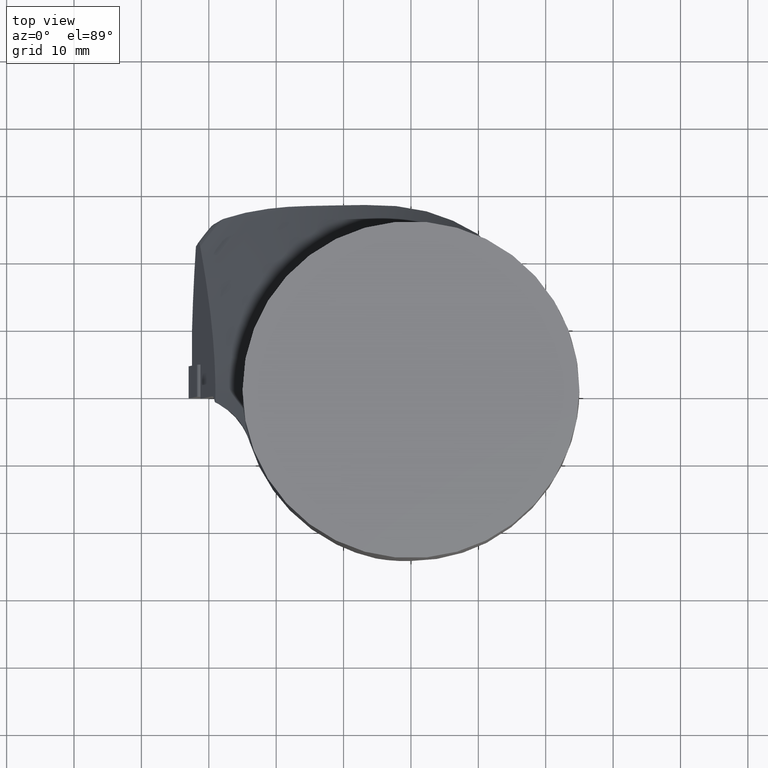
[diagram: clean part render]
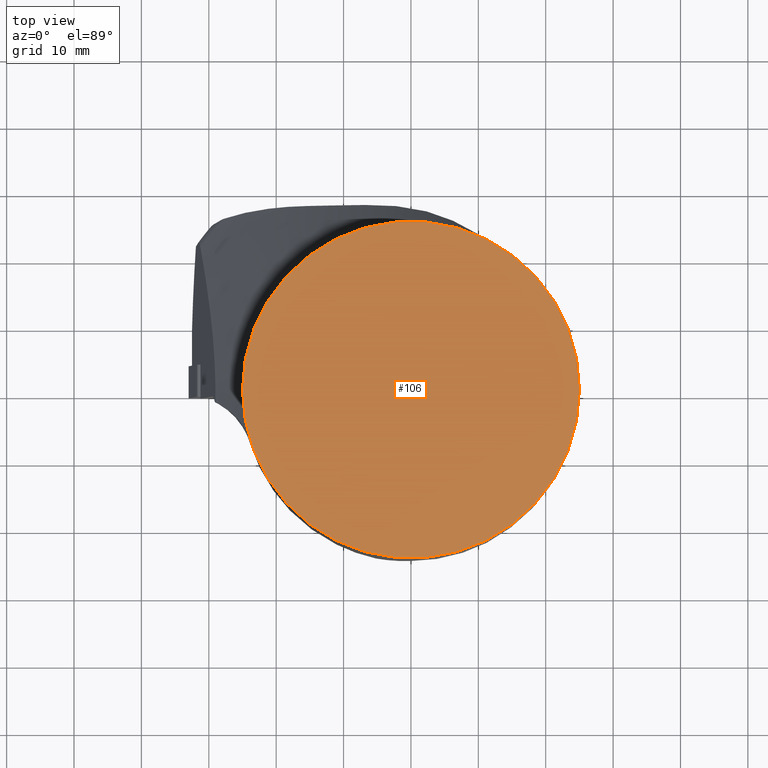
[diagram: same view with one face highlighted and labeled with its STEP entity id]
A machine part, top view. The second image highlights one B-rep face of the part: STEP entity #106.
In plain terms, the highlighted planar face has unit normal (-0, -0, -1).
Its self-contained STEP definition (entity closure, byte-faithful):
#106=ADVANCED_FACE('',(#170),#171,.F.);
#170=FACE_OUTER_BOUND('',#306,.T.);
#171=PLANE('',#307);
#306=EDGE_LOOP('',(#570,#571));
#307=AXIS2_PLACEMENT_3D('',#572,#573,#574);
#570=ORIENTED_EDGE('',*,*,#632,.T.);
#571=ORIENTED_EDGE('',*,*,#645,.T.);
#572=CARTESIAN_POINT('',(0.0,0.0,0.0));
#573=DIRECTION('',(-0.0,-0.0,-1.0));
#574=DIRECTION('',(-1.0,0.0,0.0));
#632=EDGE_CURVE('',#765,#763,#766,.T.);
#645=EDGE_CURVE('',#763,#765,#787,.T.);
#763=VERTEX_POINT('',#993);
#765=VERTEX_POINT('',#996);
#766=CIRCLE('',#997,25.0);
#787=CIRCLE('',#1068,25.0);
#993=CARTESIAN_POINT('',(-25.0,6.273356E-015,9.947598E-014));
#996=CARTESIAN_POINT('',(25.0,-6.294167E-015,2.131628E-013));
#997=AXIS2_PLACEMENT_3D('',#1235,#1236,#1237);
#1068=AXIS2_PLACEMENT_3D('',#1257,#1258,#1259);
#1235=CARTESIAN_POINT('',(-7.105427E-015,6.255621E-015,9.947598E-014));
#1236=DIRECTION('',(0.0,0.0,1.0));
#1237=DIRECTION('',(-1.0,0.0,0.0));
#1257=CARTESIAN_POINT('',(-7.105427E-015,6.255621E-015,9.947598E-014));
#1258=DIRECTION('',(0.0,0.0,1.0));
#1259=DIRECTION('',(-1.0,0.0,0.0));